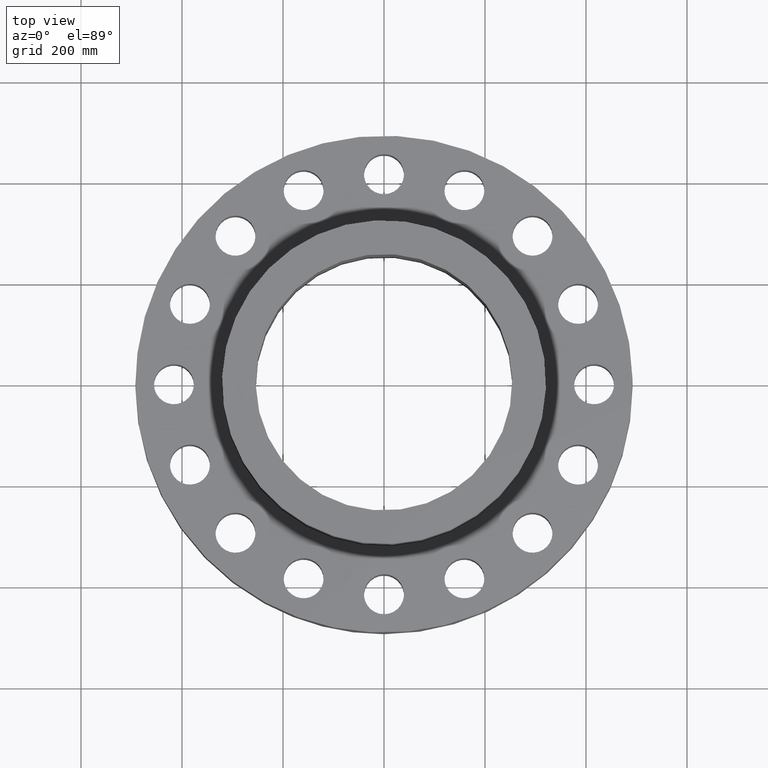
[diagram: clean part render]
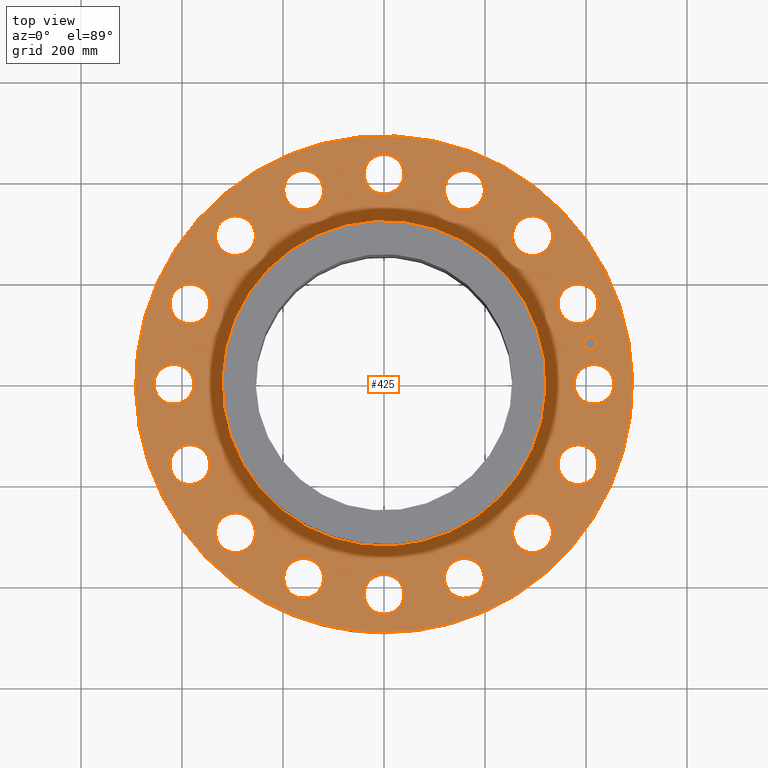
[diagram: same view with one face highlighted and labeled with its STEP entity id]
A machine part, top view. The second image highlights one B-rep face of the part: STEP entity #425.
In plain terms, the highlighted planar face has unit normal (0, 0, -1).
Its self-contained STEP definition (entity closure, byte-faithful):
#51=AXIS2_PLACEMENT_3D('Circle Axis2P3D',#49,#50,$) ;
#77=AXIS2_PLACEMENT_3D('Circle Axis2P3D',#75,#76,$) ;
#95=AXIS2_PLACEMENT_3D('Plane Axis2P3D',#92,#93,#94) ;
#99=AXIS2_PLACEMENT_3D('Circle Axis2P3D',#97,#98,$) ;
#108=AXIS2_PLACEMENT_3D('Circle Axis2P3D',#106,#107,$) ;
#121=AXIS2_PLACEMENT_3D('Circle Axis2P3D',#119,#120,$) ;
#130=AXIS2_PLACEMENT_3D('Circle Axis2P3D',#128,#129,$) ;
#139=AXIS2_PLACEMENT_3D('Circle Axis2P3D',#137,#138,$) ;
#148=AXIS2_PLACEMENT_3D('Circle Axis2P3D',#146,#147,$) ;
#157=AXIS2_PLACEMENT_3D('Circle Axis2P3D',#155,#156,$) ;
#166=AXIS2_PLACEMENT_3D('Circle Axis2P3D',#164,#165,$) ;
#175=AXIS2_PLACEMENT_3D('Circle Axis2P3D',#173,#174,$) ;
#184=AXIS2_PLACEMENT_3D('Circle Axis2P3D',#182,#183,$) ;
#193=AXIS2_PLACEMENT_3D('Circle Axis2P3D',#191,#192,$) ;
#202=AXIS2_PLACEMENT_3D('Circle Axis2P3D',#200,#201,$) ;
#211=AXIS2_PLACEMENT_3D('Circle Axis2P3D',#209,#210,$) ;
#220=AXIS2_PLACEMENT_3D('Circle Axis2P3D',#218,#219,$) ;
#229=AXIS2_PLACEMENT_3D('Circle Axis2P3D',#227,#228,$) ;
#238=AXIS2_PLACEMENT_3D('Circle Axis2P3D',#236,#237,$) ;
#247=AXIS2_PLACEMENT_3D('Circle Axis2P3D',#245,#246,$) ;
#256=AXIS2_PLACEMENT_3D('Circle Axis2P3D',#254,#255,$) ;
#265=AXIS2_PLACEMENT_3D('Circle Axis2P3D',#263,#264,$) ;
#274=AXIS2_PLACEMENT_3D('Circle Axis2P3D',#272,#273,$) ;
#283=AXIS2_PLACEMENT_3D('Circle Axis2P3D',#281,#282,$) ;
#292=AXIS2_PLACEMENT_3D('Circle Axis2P3D',#290,#291,$) ;
#301=AXIS2_PLACEMENT_3D('Circle Axis2P3D',#299,#300,$) ;
#310=AXIS2_PLACEMENT_3D('Circle Axis2P3D',#308,#309,$) ;
#319=AXIS2_PLACEMENT_3D('Circle Axis2P3D',#317,#318,$) ;
#328=AXIS2_PLACEMENT_3D('Circle Axis2P3D',#326,#327,$) ;
#337=AXIS2_PLACEMENT_3D('Circle Axis2P3D',#335,#336,$) ;
#346=AXIS2_PLACEMENT_3D('Circle Axis2P3D',#344,#345,$) ;
#355=AXIS2_PLACEMENT_3D('Circle Axis2P3D',#353,#354,$) ;
#364=AXIS2_PLACEMENT_3D('Circle Axis2P3D',#362,#363,$) ;
#373=AXIS2_PLACEMENT_3D('Circle Axis2P3D',#371,#372,$) ;
#382=AXIS2_PLACEMENT_3D('Circle Axis2P3D',#380,#381,$) ;
#391=AXIS2_PLACEMENT_3D('Circle Axis2P3D',#389,#390,$) ;
#400=AXIS2_PLACEMENT_3D('Circle Axis2P3D',#398,#399,$) ;
#409=AXIS2_PLACEMENT_3D('Circle Axis2P3D',#407,#408,$) ;
#418=AXIS2_PLACEMENT_3D('Circle Axis2P3D',#416,#417,$) ;
#44=CARTESIAN_POINT('Vertex',(15.0059712035,-0.747903840226,7.00000000003)) ;
#49=CARTESIAN_POINT('Axis2P3D Location',(16.3750000001,0.,7.00000000003)) ;
#53=CARTESIAN_POINT('Vertex',(17.7440287966,0.747903840226,7.00000000003)) ;
#75=CARTESIAN_POINT('Axis2P3D Location',(16.3750000001,0.,7.00000000003)) ;
#92=CARTESIAN_POINT('Axis2P3D Location',(0.,19.3750000001,7.00000000003)) ;
#97=CARTESIAN_POINT('Axis2P3D Location',(0.,0.,7.00000000003)) ;
#101=CARTESIAN_POINT('Vertex',(9.28886981049,17.0031621367,7.00000000003)) ;
#103=CARTESIAN_POINT('Vertex',(-9.28886981049,-17.0031621367,7.00000000003)) ;
#106=CARTESIAN_POINT('Axis2P3D Location',(0.,0.,7.00000000003)) ;
#119=CARTESIAN_POINT('Axis2P3D Location',(0.,0.,7.00000000003)) ;
#123=CARTESIAN_POINT('Vertex',(-6.0527474249,-11.0794798439,7.00000000003)) ;
#125=CARTESIAN_POINT('Vertex',(6.0527474249,11.0794798439,7.00000000003)) ;
#128=CARTESIAN_POINT('Axis2P3D Location',(0.,0.,7.00000000003)) ;
#137=CARTESIAN_POINT('Axis2P3D Location',(15.1285273449,-6.266441205,7.00000000003)) ;
#141=CARTESIAN_POINT('Vertex',(13.5774992517,-6.4335096164,7.00000000003)) ;
#143=CARTESIAN_POINT('Vertex',(16.6795554381,-6.0993727936,7.00000000003)) ;
#146=CARTESIAN_POINT('Axis2P3D Location',(15.1285273449,-6.266441205,7.00000000003)) ;
#155=CARTESIAN_POINT('Axis2P3D Location',(11.578873542,-11.578873542,7.00000000003)) ;
#159=CARTESIAN_POINT('Vertex',(10.0819761192,-11.1396718734,7.00000000003)) ;
#161=CARTESIAN_POINT('Vertex',(13.0757709648,-12.0180752106,7.00000000003)) ;
#164=CARTESIAN_POINT('Axis2P3D Location',(11.578873542,-11.578873542,7.00000000003)) ;
#173=CARTESIAN_POINT('Axis2P3D Location',(6.266441205,-15.1285273449,7.00000000003)) ;
#177=CARTESIAN_POINT('Vertex',(5.05156351586,-14.149920069,7.00000000003)) ;
#179=CARTESIAN_POINT('Vertex',(7.48131889415,-16.1071346208,7.00000000003)) ;
#182=CARTESIAN_POINT('Axis2P3D Location',(6.266441205,-15.1285273449,7.00000000003)) ;
#191=CARTESIAN_POINT('Axis2P3D Location',(1.81831802458E-015,-16.3750000001,7.00000000003)) ;
#195=CARTESIAN_POINT('Vertex',(-0.747903840226,-15.0059712035,7.00000000003)) ;
#197=CARTESIAN_POINT('Vertex',(0.747903840226,-17.7440287966,7.00000000003)) ;
#200=CARTESIAN_POINT('Axis2P3D Location',(8.39223703654E-016,-16.3750000001,7.00000000003)) ;
#209=CARTESIAN_POINT('Axis2P3D Location',(-6.266441205,-15.1285273449,7.00000000003)) ;
#213=CARTESIAN_POINT('Vertex',(-6.4335096164,-13.5774992517,7.00000000003)) ;
#215=CARTESIAN_POINT('Vertex',(-6.0993727936,-16.6795554381,7.00000000003)) ;
#218=CARTESIAN_POINT('Axis2P3D Location',(-6.266441205,-15.1285273449,7.00000000003)) ;
#227=CARTESIAN_POINT('Axis2P3D Location',(-11.578873542,-11.578873542,7.00000000003)) ;
#231=CARTESIAN_POINT('Vertex',(-11.1396718734,-10.0819761192,7.00000000003)) ;
#233=CARTESIAN_POINT('Vertex',(-12.0180752106,-13.0757709648,7.00000000003)) ;
#236=CARTESIAN_POINT('Axis2P3D Location',(-11.578873542,-11.578873542,7.00000000003)) ;
#245=CARTESIAN_POINT('Axis2P3D Location',(-15.1285273449,-6.266441205,7.00000000003)) ;
#249=CARTESIAN_POINT('Vertex',(-14.149920069,-5.05156351586,7.00000000003)) ;
#251=CARTESIAN_POINT('Vertex',(-16.1071346208,-7.48131889415,7.00000000003)) ;
#254=CARTESIAN_POINT('Axis2P3D Location',(-15.1285273449,-6.266441205,7.00000000003)) ;
#263=CARTESIAN_POINT('Axis2P3D Location',(-16.3750000001,-2.23792987641E-015,7.00000000003)) ;
#267=CARTESIAN_POINT('Vertex',(-15.0059712035,0.747903840226,7.00000000003)) ;
#269=CARTESIAN_POINT('Vertex',(-17.7440287966,-0.747903840226,7.00000000003)) ;
#272=CARTESIAN_POINT('Axis2P3D Location',(-16.3750000001,-4.47585975282E-015,7.00000000003)) ;
#281=CARTESIAN_POINT('Axis2P3D Location',(-15.1285273449,6.266441205,7.00000000003)) ;
#285=CARTESIAN_POINT('Vertex',(-13.5774992517,6.4335096164,7.00000000003)) ;
#287=CARTESIAN_POINT('Vertex',(-16.6795554381,6.0993727936,7.00000000003)) ;
#290=CARTESIAN_POINT('Axis2P3D Location',(-15.1285273449,6.266441205,7.00000000003)) ;
#299=CARTESIAN_POINT('Axis2P3D Location',(-11.578873542,11.578873542,7.00000000003)) ;
#303=CARTESIAN_POINT('Vertex',(-10.0819761192,11.1396718734,7.00000000003)) ;
#305=CARTESIAN_POINT('Vertex',(-13.0757709648,12.0180752106,7.00000000003)) ;
#308=CARTESIAN_POINT('Axis2P3D Location',(-11.578873542,11.578873542,7.00000000003)) ;
#317=CARTESIAN_POINT('Axis2P3D Location',(-6.266441205,15.1285273449,7.00000000003)) ;
#321=CARTESIAN_POINT('Vertex',(-5.05156351586,14.149920069,7.00000000003)) ;
#323=CARTESIAN_POINT('Vertex',(-7.48131889415,16.1071346208,7.00000000003)) ;
#326=CARTESIAN_POINT('Axis2P3D Location',(-6.266441205,15.1285273449,7.00000000003)) ;
#335=CARTESIAN_POINT('Axis2P3D Location',(-1.39870617276E-016,16.3750000001,7.00000000003)) ;
#339=CARTESIAN_POINT('Vertex',(0.747903840226,15.0059712035,7.00000000003)) ;
#341=CARTESIAN_POINT('Vertex',(-0.747903840226,17.7440287966,7.00000000003)) ;
#344=CARTESIAN_POINT('Axis2P3D Location',(0.,16.3750000001,7.00000000003)) ;
#353=CARTESIAN_POINT('Axis2P3D Location',(6.266441205,15.1285273449,7.00000000003)) ;
#357=CARTESIAN_POINT('Vertex',(6.4335096164,13.5774992517,7.00000000003)) ;
#359=CARTESIAN_POINT('Vertex',(6.0993727936,16.6795554381,7.00000000003)) ;
#362=CARTESIAN_POINT('Axis2P3D Location',(6.266441205,15.1285273449,7.00000000003)) ;
#371=CARTESIAN_POINT('Axis2P3D Location',(11.578873542,11.578873542,7.00000000003)) ;
#375=CARTESIAN_POINT('Vertex',(11.1396718734,10.0819761192,7.00000000003)) ;
#377=CARTESIAN_POINT('Vertex',(12.0180752106,13.0757709648,7.00000000003)) ;
#380=CARTESIAN_POINT('Axis2P3D Location',(11.578873542,11.578873542,7.00000000003)) ;
#389=CARTESIAN_POINT('Axis2P3D Location',(15.1285273449,6.266441205,7.00000000003)) ;
#393=CARTESIAN_POINT('Vertex',(14.149920069,5.05156351586,7.00000000003)) ;
#395=CARTESIAN_POINT('Vertex',(16.1071346208,7.48131889415,7.00000000003)) ;
#398=CARTESIAN_POINT('Axis2P3D Location',(15.1285273449,6.266441205,7.00000000003)) ;
#407=CARTESIAN_POINT('Axis2P3D Location',(16.0603589667,3.19460402303,7.00000000003)) ;
#411=CARTESIAN_POINT('Vertex',(16.1579041267,2.70421138773,7.00000000003)) ;
#413=CARTESIAN_POINT('Vertex',(15.9628138066,3.68499665833,7.00000000003)) ;
#416=CARTESIAN_POINT('Axis2P3D Location',(16.0603589667,3.19460402303,7.00000000003)) ;
#50=DIRECTION('Axis2P3D Direction',(0.,-0.,0.0393700787402)) ;
#76=DIRECTION('Axis2P3D Direction',(0.,-0.,0.0393700787402)) ;
#93=DIRECTION('Axis2P3D Direction',(0.,0.,-0.0393700787402)) ;
#94=DIRECTION('Axis2P3D XDirection',(0.0393700787402,0.,0.)) ;
#98=DIRECTION('Axis2P3D Direction',(0.,0.,-0.0393700787402)) ;
#107=DIRECTION('Axis2P3D Direction',(0.,0.,-0.0393700787402)) ;
#120=DIRECTION('Axis2P3D Direction',(0.,0.,-0.0393700787402)) ;
#129=DIRECTION('Axis2P3D Direction',(0.,0.,-0.0393700787402)) ;
#138=DIRECTION('Axis2P3D Direction',(0.,0.,-0.0393700787402)) ;
#147=DIRECTION('Axis2P3D Direction',(0.,0.,-0.0393700787402)) ;
#156=DIRECTION('Axis2P3D Direction',(0.,0.,-0.0393700787402)) ;
#165=DIRECTION('Axis2P3D Direction',(0.,0.,-0.0393700787402)) ;
#174=DIRECTION('Axis2P3D Direction',(0.,0.,-0.0393700787402)) ;
#183=DIRECTION('Axis2P3D Direction',(0.,0.,-0.0393700787402)) ;
#192=DIRECTION('Axis2P3D Direction',(0.,0.,-0.0393700787402)) ;
#201=DIRECTION('Axis2P3D Direction',(0.,0.,-0.0393700787402)) ;
#210=DIRECTION('Axis2P3D Direction',(0.,0.,-0.0393700787402)) ;
#219=DIRECTION('Axis2P3D Direction',(0.,0.,-0.0393700787402)) ;
#228=DIRECTION('Axis2P3D Direction',(0.,0.,-0.0393700787402)) ;
#237=DIRECTION('Axis2P3D Direction',(0.,0.,-0.0393700787402)) ;
#246=DIRECTION('Axis2P3D Direction',(0.,0.,-0.0393700787402)) ;
#255=DIRECTION('Axis2P3D Direction',(0.,0.,-0.0393700787402)) ;
#264=DIRECTION('Axis2P3D Direction',(0.,0.,-0.0393700787402)) ;
#273=DIRECTION('Axis2P3D Direction',(0.,0.,-0.0393700787402)) ;
#282=DIRECTION('Axis2P3D Direction',(0.,0.,-0.0393700787402)) ;
#291=DIRECTION('Axis2P3D Direction',(0.,0.,-0.0393700787402)) ;
#300=DIRECTION('Axis2P3D Direction',(0.,0.,-0.0393700787402)) ;
#309=DIRECTION('Axis2P3D Direction',(0.,0.,-0.0393700787402)) ;
#318=DIRECTION('Axis2P3D Direction',(0.,0.,-0.0393700787402)) ;
#327=DIRECTION('Axis2P3D Direction',(0.,0.,-0.0393700787402)) ;
#336=DIRECTION('Axis2P3D Direction',(0.,0.,-0.0393700787402)) ;
#345=DIRECTION('Axis2P3D Direction',(0.,0.,-0.0393700787402)) ;
#354=DIRECTION('Axis2P3D Direction',(0.,0.,-0.0393700787402)) ;
#363=DIRECTION('Axis2P3D Direction',(0.,0.,-0.0393700787402)) ;
#372=DIRECTION('Axis2P3D Direction',(0.,0.,-0.0393700787402)) ;
#381=DIRECTION('Axis2P3D Direction',(0.,0.,-0.0393700787402)) ;
#390=DIRECTION('Axis2P3D Direction',(0.,0.,-0.0393700787402)) ;
#399=DIRECTION('Axis2P3D Direction',(0.,0.,-0.0393700787402)) ;
#408=DIRECTION('Axis2P3D Direction',(0.,0.,-0.0393700787402)) ;
#417=DIRECTION('Axis2P3D Direction',(0.,0.,-0.0393700787402)) ;
#112=ORIENTED_EDGE('',*,*,#105,.F.) ;
#113=ORIENTED_EDGE('',*,*,#110,.F.) ;
#116=ORIENTED_EDGE('',*,*,#55,.T.) ;
#117=ORIENTED_EDGE('',*,*,#79,.T.) ;
#134=ORIENTED_EDGE('',*,*,#127,.T.) ;
#135=ORIENTED_EDGE('',*,*,#132,.T.) ;
#152=ORIENTED_EDGE('',*,*,#145,.T.) ;
#153=ORIENTED_EDGE('',*,*,#150,.T.) ;
#170=ORIENTED_EDGE('',*,*,#163,.T.) ;
#171=ORIENTED_EDGE('',*,*,#168,.T.) ;
#188=ORIENTED_EDGE('',*,*,#181,.T.) ;
#189=ORIENTED_EDGE('',*,*,#186,.T.) ;
#206=ORIENTED_EDGE('',*,*,#199,.T.) ;
#207=ORIENTED_EDGE('',*,*,#204,.T.) ;
#224=ORIENTED_EDGE('',*,*,#217,.T.) ;
#225=ORIENTED_EDGE('',*,*,#222,.T.) ;
#242=ORIENTED_EDGE('',*,*,#235,.T.) ;
#243=ORIENTED_EDGE('',*,*,#240,.T.) ;
#260=ORIENTED_EDGE('',*,*,#253,.T.) ;
#261=ORIENTED_EDGE('',*,*,#258,.T.) ;
#278=ORIENTED_EDGE('',*,*,#271,.T.) ;
#279=ORIENTED_EDGE('',*,*,#276,.T.) ;
#296=ORIENTED_EDGE('',*,*,#289,.T.) ;
#297=ORIENTED_EDGE('',*,*,#294,.T.) ;
#314=ORIENTED_EDGE('',*,*,#307,.T.) ;
#315=ORIENTED_EDGE('',*,*,#312,.T.) ;
#332=ORIENTED_EDGE('',*,*,#325,.T.) ;
#333=ORIENTED_EDGE('',*,*,#330,.T.) ;
#350=ORIENTED_EDGE('',*,*,#343,.T.) ;
#351=ORIENTED_EDGE('',*,*,#348,.T.) ;
#368=ORIENTED_EDGE('',*,*,#361,.T.) ;
#369=ORIENTED_EDGE('',*,*,#366,.T.) ;
#386=ORIENTED_EDGE('',*,*,#379,.T.) ;
#387=ORIENTED_EDGE('',*,*,#384,.T.) ;
#404=ORIENTED_EDGE('',*,*,#397,.T.) ;
#405=ORIENTED_EDGE('',*,*,#402,.T.) ;
#422=ORIENTED_EDGE('',*,*,#415,.F.) ;
#423=ORIENTED_EDGE('',*,*,#420,.F.) ;
#118=FACE_BOUND('',#115,.T.) ;
#136=FACE_BOUND('',#133,.T.) ;
#154=FACE_BOUND('',#151,.T.) ;
#172=FACE_BOUND('',#169,.T.) ;
#190=FACE_BOUND('',#187,.T.) ;
#208=FACE_BOUND('',#205,.T.) ;
#226=FACE_BOUND('',#223,.T.) ;
#244=FACE_BOUND('',#241,.T.) ;
#262=FACE_BOUND('',#259,.T.) ;
#280=FACE_BOUND('',#277,.T.) ;
#298=FACE_BOUND('',#295,.T.) ;
#316=FACE_BOUND('',#313,.T.) ;
#334=FACE_BOUND('',#331,.T.) ;
#352=FACE_BOUND('',#349,.T.) ;
#370=FACE_BOUND('',#367,.T.) ;
#388=FACE_BOUND('',#385,.T.) ;
#406=FACE_BOUND('',#403,.T.) ;
#424=FACE_BOUND('',#421,.T.) ;
#425=ADVANCED_FACE('PartBody',(#114,#118,#136,#154,#172,#190,#208,#226,#244,#262,#280,#298,#316,#334,#352,#370,#388,#406,#424),#96,.F.) ;
#52=CIRCLE('generated circle',#51,1.56000000001) ;
#78=CIRCLE('generated circle',#77,1.56000000001) ;
#100=CIRCLE('generated circle',#99,19.3750000001) ;
#109=CIRCLE('generated circle',#108,19.3750000001) ;
#122=CIRCLE('generated circle',#121,12.6250000001) ;
#131=CIRCLE('generated circle',#130,12.6250000001) ;
#140=CIRCLE('generated circle',#139,1.56000000001) ;
#149=CIRCLE('generated circle',#148,1.56000000001) ;
#158=CIRCLE('generated circle',#157,1.56000000001) ;
#167=CIRCLE('generated circle',#166,1.56000000001) ;
#176=CIRCLE('generated circle',#175,1.56000000001) ;
#185=CIRCLE('generated circle',#184,1.56000000001) ;
#194=CIRCLE('generated circle',#193,1.56000000001) ;
#203=CIRCLE('generated circle',#202,1.56000000001) ;
#212=CIRCLE('generated circle',#211,1.56000000001) ;
#221=CIRCLE('generated circle',#220,1.56000000001) ;
#230=CIRCLE('generated circle',#229,1.56000000001) ;
#239=CIRCLE('generated circle',#238,1.56000000001) ;
#248=CIRCLE('generated circle',#247,1.56000000001) ;
#257=CIRCLE('generated circle',#256,1.56000000001) ;
#266=CIRCLE('generated circle',#265,1.56000000001) ;
#275=CIRCLE('generated circle',#274,1.56000000001) ;
#284=CIRCLE('generated circle',#283,1.56000000001) ;
#293=CIRCLE('generated circle',#292,1.56000000001) ;
#302=CIRCLE('generated circle',#301,1.56000000001) ;
#311=CIRCLE('generated circle',#310,1.56000000001) ;
#320=CIRCLE('generated circle',#319,1.56000000001) ;
#329=CIRCLE('generated circle',#328,1.56000000001) ;
#338=CIRCLE('generated circle',#337,1.56000000001) ;
#347=CIRCLE('generated circle',#346,1.56000000001) ;
#356=CIRCLE('generated circle',#355,1.56000000001) ;
#365=CIRCLE('generated circle',#364,1.56000000001) ;
#374=CIRCLE('generated circle',#373,1.56000000001) ;
#383=CIRCLE('generated circle',#382,1.56000000001) ;
#392=CIRCLE('generated circle',#391,1.56000000001) ;
#401=CIRCLE('generated circle',#400,1.56000000001) ;
#410=CIRCLE('generated circle',#409,0.499999995002) ;
#419=CIRCLE('generated circle',#418,0.499999995002) ;
#55=EDGE_CURVE('',#54,#45,#52,.F.) ;
#79=EDGE_CURVE('',#45,#54,#78,.F.) ;
#105=EDGE_CURVE('',#102,#104,#100,.T.) ;
#110=EDGE_CURVE('',#104,#102,#109,.T.) ;
#127=EDGE_CURVE('',#124,#126,#122,.T.) ;
#132=EDGE_CURVE('',#126,#124,#131,.T.) ;
#145=EDGE_CURVE('',#142,#144,#140,.T.) ;
#150=EDGE_CURVE('',#144,#142,#149,.T.) ;
#163=EDGE_CURVE('',#160,#162,#158,.T.) ;
#168=EDGE_CURVE('',#162,#160,#167,.T.) ;
#181=EDGE_CURVE('',#178,#180,#176,.T.) ;
#186=EDGE_CURVE('',#180,#178,#185,.T.) ;
#199=EDGE_CURVE('',#196,#198,#194,.T.) ;
#204=EDGE_CURVE('',#198,#196,#203,.T.) ;
#217=EDGE_CURVE('',#214,#216,#212,.T.) ;
#222=EDGE_CURVE('',#216,#214,#221,.T.) ;
#235=EDGE_CURVE('',#232,#234,#230,.T.) ;
#240=EDGE_CURVE('',#234,#232,#239,.T.) ;
#253=EDGE_CURVE('',#250,#252,#248,.T.) ;
#258=EDGE_CURVE('',#252,#250,#257,.T.) ;
#271=EDGE_CURVE('',#268,#270,#266,.T.) ;
#276=EDGE_CURVE('',#270,#268,#275,.T.) ;
#289=EDGE_CURVE('',#286,#288,#284,.T.) ;
#294=EDGE_CURVE('',#288,#286,#293,.T.) ;
#307=EDGE_CURVE('',#304,#306,#302,.T.) ;
#312=EDGE_CURVE('',#306,#304,#311,.T.) ;
#325=EDGE_CURVE('',#322,#324,#320,.T.) ;
#330=EDGE_CURVE('',#324,#322,#329,.T.) ;
#343=EDGE_CURVE('',#340,#342,#338,.T.) ;
#348=EDGE_CURVE('',#342,#340,#347,.T.) ;
#361=EDGE_CURVE('',#358,#360,#356,.T.) ;
#366=EDGE_CURVE('',#360,#358,#365,.T.) ;
#379=EDGE_CURVE('',#376,#378,#374,.T.) ;
#384=EDGE_CURVE('',#378,#376,#383,.T.) ;
#397=EDGE_CURVE('',#394,#396,#392,.T.) ;
#402=EDGE_CURVE('',#396,#394,#401,.T.) ;
#415=EDGE_CURVE('',#412,#414,#410,.F.) ;
#420=EDGE_CURVE('',#414,#412,#419,.F.) ;
#111=EDGE_LOOP('',(#112,#113)) ;
#115=EDGE_LOOP('',(#116,#117)) ;
#133=EDGE_LOOP('',(#134,#135)) ;
#151=EDGE_LOOP('',(#152,#153)) ;
#169=EDGE_LOOP('',(#170,#171)) ;
#187=EDGE_LOOP('',(#188,#189)) ;
#205=EDGE_LOOP('',(#206,#207)) ;
#223=EDGE_LOOP('',(#224,#225)) ;
#241=EDGE_LOOP('',(#242,#243)) ;
#259=EDGE_LOOP('',(#260,#261)) ;
#277=EDGE_LOOP('',(#278,#279)) ;
#295=EDGE_LOOP('',(#296,#297)) ;
#313=EDGE_LOOP('',(#314,#315)) ;
#331=EDGE_LOOP('',(#332,#333)) ;
#349=EDGE_LOOP('',(#350,#351)) ;
#367=EDGE_LOOP('',(#368,#369)) ;
#385=EDGE_LOOP('',(#386,#387)) ;
#403=EDGE_LOOP('',(#404,#405)) ;
#421=EDGE_LOOP('',(#422,#423)) ;
#114=FACE_OUTER_BOUND('',#111,.T.) ;
#96=PLANE('',#95) ;
#45=VERTEX_POINT('',#44) ;
#54=VERTEX_POINT('',#53) ;
#102=VERTEX_POINT('',#101) ;
#104=VERTEX_POINT('',#103) ;
#124=VERTEX_POINT('',#123) ;
#126=VERTEX_POINT('',#125) ;
#142=VERTEX_POINT('',#141) ;
#144=VERTEX_POINT('',#143) ;
#160=VERTEX_POINT('',#159) ;
#162=VERTEX_POINT('',#161) ;
#178=VERTEX_POINT('',#177) ;
#180=VERTEX_POINT('',#179) ;
#196=VERTEX_POINT('',#195) ;
#198=VERTEX_POINT('',#197) ;
#214=VERTEX_POINT('',#213) ;
#216=VERTEX_POINT('',#215) ;
#232=VERTEX_POINT('',#231) ;
#234=VERTEX_POINT('',#233) ;
#250=VERTEX_POINT('',#249) ;
#252=VERTEX_POINT('',#251) ;
#268=VERTEX_POINT('',#267) ;
#270=VERTEX_POINT('',#269) ;
#286=VERTEX_POINT('',#285) ;
#288=VERTEX_POINT('',#287) ;
#304=VERTEX_POINT('',#303) ;
#306=VERTEX_POINT('',#305) ;
#322=VERTEX_POINT('',#321) ;
#324=VERTEX_POINT('',#323) ;
#340=VERTEX_POINT('',#339) ;
#342=VERTEX_POINT('',#341) ;
#358=VERTEX_POINT('',#357) ;
#360=VERTEX_POINT('',#359) ;
#376=VERTEX_POINT('',#375) ;
#378=VERTEX_POINT('',#377) ;
#394=VERTEX_POINT('',#393) ;
#396=VERTEX_POINT('',#395) ;
#412=VERTEX_POINT('',#411) ;
#414=VERTEX_POINT('',#413) ;